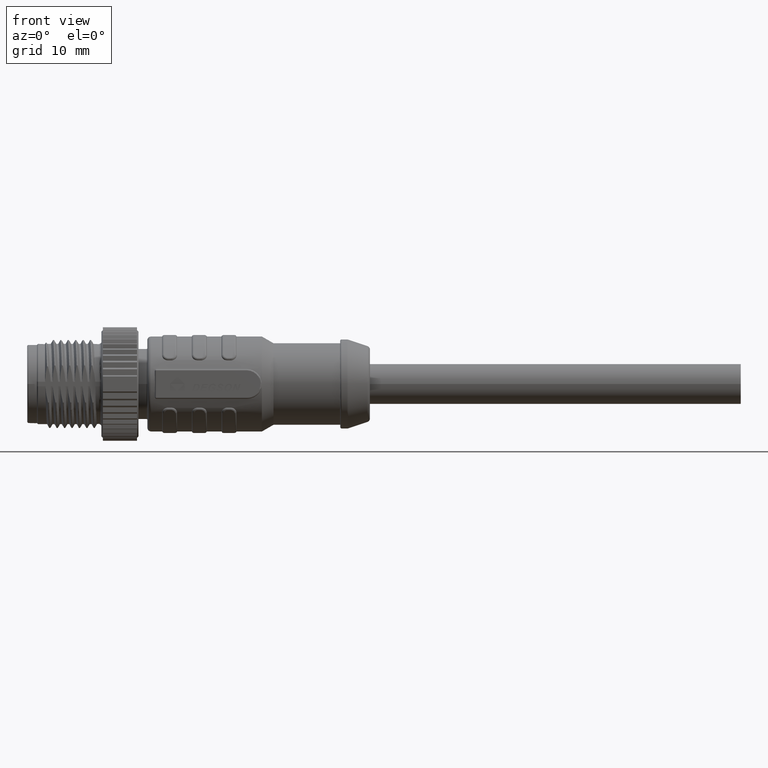
[diagram: clean part render]
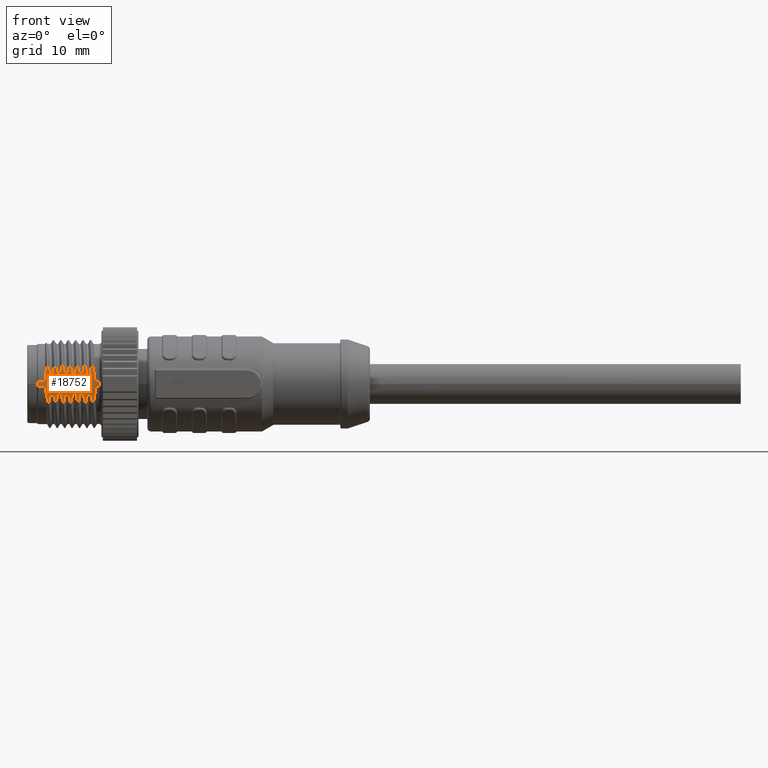
[diagram: same view with one face highlighted and labeled with its STEP entity id]
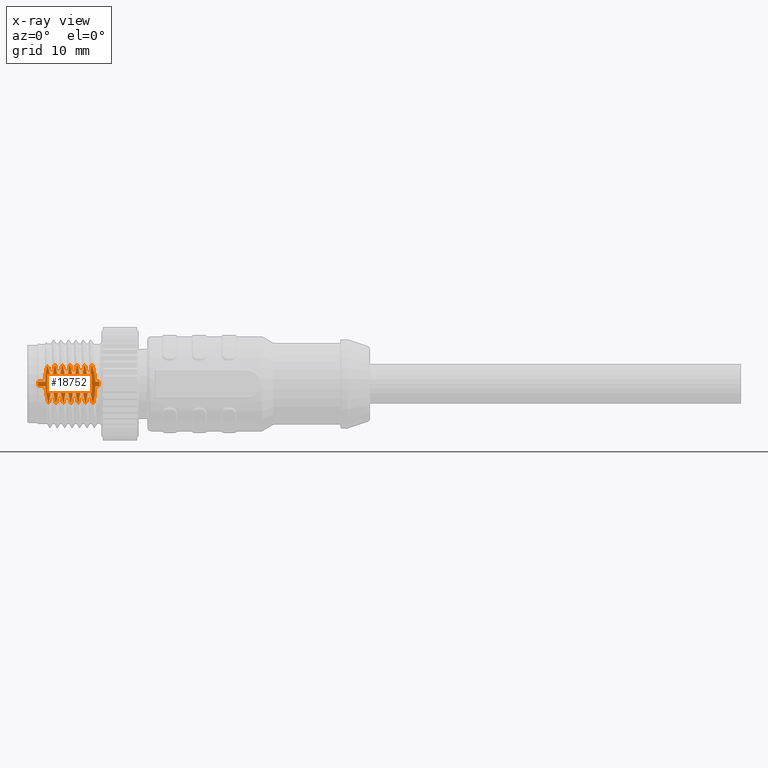
[diagram: x-ray of the same camera — body ghosted, the highlighted face saturated]
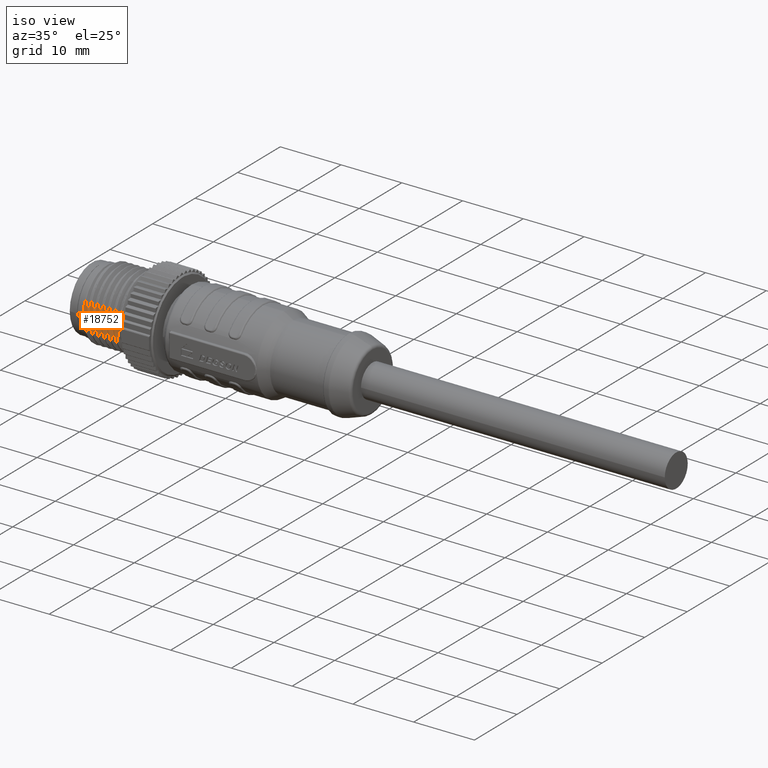
[diagram: same view with one face highlighted and labeled with its STEP entity id]
A machine part, front view. The second image highlights one B-rep face of the part: STEP entity #18752.
The next image is the same camera in x-ray: the body ghosted, the highlighted face saturated — about 0% of this face is hidden behind the body in this view.
A second angle (iso view) of the same face is appended — the face is thin or edge-on in the first view.
In plain terms, the highlighted planar face has unit normal (0, 1, 0).
Its self-contained STEP definition (entity closure, byte-faithful):
#3849=DIRECTION('',(-9.999999998954E-1,1.437775475043E-5,-1.555587373474E-6));
#3850=VECTOR('',#3849,5.361848417126E-1);
#3851=CARTESIAN_POINT('',(7.7E0,-5.399999996866E0,3.031043570919E-1));
#3852=LINE('',#3851,#3850);
#3879=CARTESIAN_POINT('',(4.758421549227E-1,-5.400004330202E0,
1.318686244811E0));
#3880=CARTESIAN_POINT('',(4.913543382881E-1,-5.400004330202E0,
1.431942857087E0));
#3881=CARTESIAN_POINT('',(5.264910600428E-1,-5.399997505345E0,
1.660938175478E0));
#3882=CARTESIAN_POINT('',(5.915410913869E-1,-5.400002235988E0,
2.010943916774E0));
#3883=CARTESIAN_POINT('',(6.435173238011E-1,-5.399996445797E0,
2.250433304931E0));
#3884=CARTESIAN_POINT('',(6.716387361948E-1,-5.399996445797E0,
2.371564042817E0));
#3886=DIRECTION('',(9.999999999676E-1,8.004545640167E-6,8.510400743817E-7));
#3887=VECTOR('',#3886,9.861847148798E-1);
#3888=CARTESIAN_POINT('',(-5.499998731411E-1,-5.400000181688E0,
-3.031043628394E-1));
#3889=LINE('',#3888,#3887);
#4541=CARTESIAN_POINT('',(4.361848417067E-1,-5.399992287728E0,
-3.031035235567E-1));
#4542=CARTESIAN_POINT('',(4.510722422625E-1,-5.399992287728E0,
-5.432032425523E-1));
#4543=CARTESIAN_POINT('',(4.994287043616E-1,-5.400001675959E0,
-1.025080632553E0));
#4544=CARTESIAN_POINT('',(6.235215837685E-1,-5.400005702552E0,
-1.747705924226E0));
#4545=CARTESIAN_POINT('',(7.401433756114E-1,-5.399985576739E0,
-2.240334188830E0));
#4546=CARTESIAN_POINT('',(8.062400712477E-1,-5.399985576739E0,
-2.488649446588E0));
#4555=DIRECTION('',(9.999999999903E-1,-5.681294500907E-7,-4.363862498854E-6));
#4556=VECTOR('',#4555,1.249825533555E-1);
#4557=CARTESIAN_POINT('',(8.062400712477E-1,-5.399985576739E0,
-2.488649446588E0));
#4558=LINE('',#4557,#4556);
#4578=CARTESIAN_POINT('',(9.312226246019E-1,-5.399985647746E0,
-2.488649991995E0));
#4579=CARTESIAN_POINT('',(9.853159903651E-1,-5.399985647746E0,
-2.240007772341E0));
#4580=CARTESIAN_POINT('',(1.076772205139E0,-5.400005666810E0,
-1.746831242520E0));
#4581=CARTESIAN_POINT('',(1.160682825947E0,-5.400001694545E0,
-1.024244117253E0));
#4582=CARTESIAN_POINT('',(1.180885693106E0,-5.399992268188E0,
-5.428160748020E-1));
#4583=CARTESIAN_POINT('',(1.181663345267E0,-5.399992268188E0,
-3.031043115776E-1));
#4607=DIRECTION('',(9.999999999952E-1,-7.678369311966E-8,3.098238038354E-6));
#4608=VECTOR('',#4607,2.545214963911E-1);
#4609=CARTESIAN_POINT('',(1.181663345267E0,-5.399992268188E0,
-3.031043115776E-1));
#4610=LINE('',#4609,#4608);
#4651=CARTESIAN_POINT('',(1.436184841657E0,-5.399992287731E0,
-3.031035230095E-1));
#4652=CARTESIAN_POINT('',(1.451072569460E0,-5.399992287731E0,
-5.432085197550E-1));
#4653=CARTESIAN_POINT('',(1.499430659419E0,-5.400001675957E0,
-1.025092596027E0));
#4654=CARTESIAN_POINT('',(1.623519391307E0,-5.400005702552E0,
-1.747693834707E0));
#4655=CARTESIAN_POINT('',(1.740141995772E0,-5.399985576739E0,
-2.240329004983E0));
#4656=CARTESIAN_POINT('',(1.806240071247E0,-5.399985576739E0,
-2.488649446588E0));
#4665=DIRECTION('',(9.999999999903E-1,-5.681284907233E-7,-4.363862076015E-6));
#4666=VECTOR('',#4665,1.249825533557E-1);
#4667=CARTESIAN_POINT('',(1.806240071247E0,-5.399985576739E0,
-2.488649446588E0));
#4668=LINE('',#4667,#4666);
#4688=CARTESIAN_POINT('',(1.931222624602E0,-5.399985647746E0,
-2.488649991995E0));
#4689=CARTESIAN_POINT('',(1.985316162070E0,-5.399985647746E0,
-2.240006983092E0));
#4690=CARTESIAN_POINT('',(2.076772444973E0,-5.400005666810E0,
-1.746829402940E0));
#4691=CARTESIAN_POINT('',(2.160682668051E0,-5.400001694545E0,
-1.024245520512E0));
#4692=CARTESIAN_POINT('',(2.180885691104E0,-5.399992268188E0,
-5.428166919759E-1));
#4693=CARTESIAN_POINT('',(2.181663345267E0,-5.399992268188E0,
-3.031043115776E-1));
#4717=DIRECTION('',(9.999999999952E-1,-7.678424796626E-8,3.098238108367E-6));
#4718=VECTOR('',#4717,2.545214963909E-1);
#4719=CARTESIAN_POINT('',(2.181663345267E0,-5.399992268188E0,
-3.031043115776E-1));
#4720=LINE('',#4719,#4718);
#4761=CARTESIAN_POINT('',(2.436184841656E0,-5.399992287731E0,
-3.031035230094E-1));
#4762=CARTESIAN_POINT('',(2.451072290899E0,-5.399992287731E0,
-5.432040272117E-1));
#4763=CARTESIAN_POINT('',(2.499428990967E0,-5.400001675957E0,
-1.025082413938E0));
#4764=CARTESIAN_POINT('',(2.623521306122E0,-5.400005702552E0,
-1.747704373342E0));
#4765=CARTESIAN_POINT('',(2.740143198405E0,-5.399985576739E0,
-2.240333523098E0));
#4766=CARTESIAN_POINT('',(2.806240071247E0,-5.399985576739E0,
-2.488649446588E0));
#4775=DIRECTION('',(9.999999999903E-1,-5.681295069419E-7,-4.363862498852E-6));
#4776=VECTOR('',#4775,1.249825533555E-1);
#4777=CARTESIAN_POINT('',(2.806240071247E0,-5.399985576739E0,
-2.488649446588E0));
#4778=LINE('',#4777,#4776);
#4798=CARTESIAN_POINT('',(2.931222624601E0,-5.399985647746E0,
-2.488649991995E0));
#4799=CARTESIAN_POINT('',(2.985316021382E0,-5.399985647746E0,
-2.240007629768E0));
#4800=CARTESIAN_POINT('',(3.076772247974E0,-5.400005666810E0,
-1.746830910425E0));
#4801=CARTESIAN_POINT('',(3.160682794794E0,-5.400001694545E0,
-1.024244400163E0));
#4802=CARTESIAN_POINT('',(3.180885692702E0,-5.399992268188E0,
-5.428161990473E-1));
#4803=CARTESIAN_POINT('',(3.181663345266E0,-5.399992268188E0,
-3.031043115777E-1));
#4827=DIRECTION('',(9.999999995624E-1,-2.958253887279E-5,-8.483503402669E-8));
#4828=VECTOR('',#4827,2.545084317712E-1);
#4829=CARTESIAN_POINT('',(3.181663345266E0,-5.399992268188E0,
-3.031043115777E-1));
#4830=LINE('',#4829,#4828);
#4876=CARTESIAN_POINT('',(3.436171776926E0,-5.399999797194E0,
-3.031043331689E-1));
#4877=CARTESIAN_POINT('',(3.450760734506E0,-5.399999797194E0,
-5.425362327964E-1));
#4878=CARTESIAN_POINT('',(3.499192089104E0,-5.399997053868E0,
-1.023496380586E0));
#4879=CARTESIAN_POINT('',(3.623118078726E0,-5.400010615671E0,
-1.746296900541E0));
#4880=CARTESIAN_POINT('',(3.740014142609E0,-5.399977194189E0,
-2.239726934057E0));
#4881=CARTESIAN_POINT('',(3.806275484389E0,-5.399977194189E0,
-2.488644533749E0));
#4883=DIRECTION('',(9.999999163569E-1,-3.714627774349E-4,-1.711770378165E-4));
#4884=VECTOR('',#4883,1.249997827542E-1);
#4885=CARTESIAN_POINT('',(3.806275484389E0,-5.399977194189E0,
-2.488644533749E0));
#4886=LINE('',#4885,#4884);
#4901=CARTESIAN_POINT('',(3.931275256688E0,-5.400023626955E0,
-2.488665930842E0));
#4902=CARTESIAN_POINT('',(3.985402507151E0,-5.400023626955E0,
-2.239353748617E0));
#4903=CARTESIAN_POINT('',(4.077094507122E0,-5.399982667366E0,
-1.745320431761E0));
#4904=CARTESIAN_POINT('',(4.160932559929E0,-5.400025223786E0,
-1.022731013885E0));
#4905=CARTESIAN_POINT('',(4.180910236874E0,-5.399952699589E0,
-5.421629693586E-1));
#4906=CARTESIAN_POINT('',(4.181814311390E0,-5.399952699589E0,
-3.031010049271E-1));
#4908=DIRECTION('',(9.999999878404E-1,-1.556317927055E-4,-9.899269086504E-6));
#4909=VECTOR('',#4908,2.543705333597E-1);
#4910=CARTESIAN_POINT('',(4.181814311390E0,-5.399952699589E0,
-3.031010049271E-1));
#4911=LINE('',#4910,#4909);
#4957=CARTESIAN_POINT('',(4.436184841656E0,-5.399992287731E0,
-3.031035230095E-1));
#4958=CARTESIAN_POINT('',(4.451072249305E0,-5.399992287731E0,
-5.432033564001E-1));
#4959=CARTESIAN_POINT('',(4.499428746806E0,-5.400001675957E0,
-1.025080889832E0));
#4960=CARTESIAN_POINT('',(4.623521530886E0,-5.400005702552E0,
-1.747705635585E0));
#4961=CARTESIAN_POINT('',(4.740143342683E0,-5.399985576739E0,
-2.240334065124E0));
#4962=CARTESIAN_POINT('',(4.806240071247E0,-5.399985576739E0,
-2.488649446588E0));
#4971=DIRECTION('',(9.999999999903E-1,-5.681283770246E-7,-4.363862033407E-6));
#4972=VECTOR('',#4971,1.249825533548E-1);
#4973=CARTESIAN_POINT('',(4.806240071247E0,-5.399985576739E0,
-2.488649446588E0));
#4974=LINE('',#4973,#4972);
#4994=CARTESIAN_POINT('',(4.931222624601E0,-5.399985647746E0,
-2.488649991995E0));
#4995=CARTESIAN_POINT('',(4.985311871132E0,-5.399985647746E0,
-2.240026706550E0));
#4996=CARTESIAN_POINT('',(5.076766409171E0,-5.400005666810E0,
-1.746875390620E0));
#4997=CARTESIAN_POINT('',(5.160686411219E0,-5.400001694545E0,
-1.024212795699E0));
#4998=CARTESIAN_POINT('',(5.180885737842E0,-5.399992268188E0,
-5.428022845591E-1));
#4999=CARTESIAN_POINT('',(5.181663345266E0,-5.399992268188E0,
-3.031043115777E-1));
#5023=DIRECTION('',(9.999999999952E-1,-7.678370707791E-8,3.098237976189E-6));
#5024=VECTOR('',#5023,2.545214963917E-1);
#5025=CARTESIAN_POINT('',(5.181663345266E0,-5.399992268188E0,
-3.031043115777E-1));
#5026=LINE('',#5025,#5024);
#5067=CARTESIAN_POINT('',(5.436184841656E0,-5.399992287731E0,
-3.031035230095E-1));
#5068=CARTESIAN_POINT('',(5.451072245830E0,-5.399992287731E0,
-5.432033003556E-1));
#5069=CARTESIAN_POINT('',(5.499428724833E0,-5.400001675957E0,
-1.025080763803E0));
#5070=CARTESIAN_POINT('',(5.623521571196E0,-5.400005702552E0,
-1.747705850298E0));
#5071=CARTESIAN_POINT('',(5.740143367124E0,-5.399985576739E0,
-2.240334156949E0));
#5072=CARTESIAN_POINT('',(5.806240071247E0,-5.399985576739E0,
-2.488649446588E0));
#5081=DIRECTION('',(9.999999999903E-1,-5.681295709040E-7,-4.363862534418E-6));
#5082=VECTOR('',#5081,1.249825533546E-1);
#5083=CARTESIAN_POINT('',(5.806240071247E0,-5.399985576739E0,
-2.488649446588E0));
#5084=LINE('',#5083,#5082);
#5104=CARTESIAN_POINT('',(5.931222624600E0,-5.399985647746E0,
-2.488649991995E0));
#5105=CARTESIAN_POINT('',(5.985308631293E0,-5.399985647746E0,
-2.240041598590E0));
#5106=CARTESIAN_POINT('',(6.076761866526E0,-5.400005666810E0,
-1.746910110960E0));
#5107=CARTESIAN_POINT('',(6.160689276205E0,-5.400001694545E0,
-1.024187583744E0));
#5108=CARTESIAN_POINT('',(6.180885773841E0,-5.399992268188E0,
-5.427911881383E-1));
#5109=CARTESIAN_POINT('',(6.181663345267E0,-5.399992268188E0,
-3.031043115776E-1));
#5133=DIRECTION('',(9.999999997348E-1,-2.302064609998E-5,6.218319285253E-7));
#5134=VECTOR('',#5133,2.545113371248E-1);
#5135=CARTESIAN_POINT('',(6.181663345267E0,-5.399992268188E0,
-3.031043115776E-1));
#5136=LINE('',#5135,#5134);
#5170=CARTESIAN_POINT('',(6.436174682324E0,-5.399998127204E0,
-3.031041533143E-1));
#5171=CARTESIAN_POINT('',(6.451022602603E0,-5.399998127204E0,
-5.430121990020E-1));
#5172=CARTESIAN_POINT('',(6.499327684022E0,-5.400000281190E0,
-1.024634105251E0));
#5173=CARTESIAN_POINT('',(6.623433815127E0,-5.400001825031E0,
-1.747200870850E0));
#5174=CARTESIAN_POINT('',(6.740097759651E0,-5.399995554136E0,
-2.240123914630E0));
#5175=CARTESIAN_POINT('',(6.806235446915E0,-5.399995554136E0,
-2.488654184696E0));
#5177=DIRECTION('',(9.999999999974E-1,-5.543265565438E-7,-2.221890536559E-6));
#5178=VECTOR('',#5177,1.249916052548E-1);
#5179=CARTESIAN_POINT('',(6.806235446915E0,-5.399995554136E0,
-2.488654184696E0));
#5180=LINE('',#5179,#5178);
#5190=CARTESIAN_POINT('',(6.931227052169E0,-5.399995623422E0,
-2.488654462414E0));
#5191=CARTESIAN_POINT('',(6.985351456132E0,-5.399995623422E0,
-2.239795131548E0));
#5192=CARTESIAN_POINT('',(7.076834908719E0,-5.400001792766E0,
-1.746321255592E0));
#5193=CARTESIAN_POINT('',(7.160759299804E0,-5.400000290187E0,
-1.023788061331E0));
#5194=CARTESIAN_POINT('',(7.180924219094E0,-5.399998127719E0,
-5.426205693641E-1));
#5195=CARTESIAN_POINT('',(7.181673481334E0,-5.399998127719E0,
-3.031043448355E-1));
#5225=DIRECTION('',(9.999999999935E-1,-3.606118645557E-6,-2.364545437958E-8));
#5226=VECTOR('',#5225,5.183265186696E-1);
#5227=CARTESIAN_POINT('',(7.181673481334E0,-5.399998127719E0,
-3.031043448355E-1));
#5228=LINE('',#5227,#5226);
#5254=DIRECTION('',(0.E0,6.842186730335E-13,1.E0));
#5255=VECTOR('',#5254,6.062087141834E-1);
#5256=CARTESIAN_POINT('',(7.7E0,-5.399999996866E0,-3.031043570916E-1));
#5257=LINE('',#5256,#5255);
#5445=CARTESIAN_POINT('',(7.163815158344E0,-5.399992287731E0,
3.031035230095E-1));
#5446=CARTESIAN_POINT('',(7.148925360143E0,-5.399992287731E0,
5.432419105243E-1));
#5447=CARTESIAN_POINT('',(7.100556733644E0,-5.400001675957E0,1.025168098469E0));
#5448=CARTESIAN_POINT('',(6.976497755576E0,-5.400005702552E0,1.747600788239E0));
#5449=CARTESIAN_POINT('',(6.859868612059E0,-5.399985576739E0,2.240289152968E0));
#5450=CARTESIAN_POINT('',(6.793759928752E0,-5.399985576739E0,2.488649446588E0));
#5474=DIRECTION('',(-9.999999999903E-1,-5.681296348602E-7,4.363862630342E-6));
#5475=VECTOR('',#5474,1.249825533549E-1);
#5476=CARTESIAN_POINT('',(6.793759928752E0,-5.399985576739E0,2.488649446588E0));
#5477=LINE('',#5476,#5475);
#5497=CARTESIAN_POINT('',(6.668777375398E0,-5.399985647746E0,2.488649991995E0));
#5498=CARTESIAN_POINT('',(6.614689026518E0,-5.399985647746E0,2.240030832635E0));
#5499=CARTESIAN_POINT('',(6.523234857077E0,-5.400005666810E0,1.746885013211E0));
#5500=CARTESIAN_POINT('',(6.439312831039E0,-5.400001694545E0,1.024206217262E0));
#5501=CARTESIAN_POINT('',(6.419114252756E0,-5.399992268188E0,
5.427993865657E-1));
#5502=CARTESIAN_POINT('',(6.418336654733E0,-5.399992268188E0,
3.031043115776E-1));
#5511=DIRECTION('',(-9.999999999952E-1,-7.678422353905E-8,-3.098238103786E-6));
#5512=VECTOR('',#5511,2.545214963909E-1);
#5513=CARTESIAN_POINT('',(6.418336654733E0,-5.399992268188E0,
3.031043115776E-1));
#5514=LINE('',#5513,#5512);
#5555=CARTESIAN_POINT('',(6.163815158343E0,-5.399992287731E0,
3.031035230094E-1));
#5556=CARTESIAN_POINT('',(6.148927074650E0,-5.399992287731E0,
5.432142594464E-1));
#5557=CARTESIAN_POINT('',(6.100567162099E0,-5.400001675957E0,1.025105564960E0));
#5558=CARTESIAN_POINT('',(5.976483713721E0,-5.400005702552E0,1.747677043050E0));
#5559=CARTESIAN_POINT('',(5.859859918089E0,-5.399985576739E0,2.240321814893E0));
#5560=CARTESIAN_POINT('',(5.793759928750E0,-5.399985576739E0,2.488649446588E0));
#5584=DIRECTION('',(-9.999999999903E-1,-5.681292440093E-7,4.363862388740E-6));
#5585=VECTOR('',#5584,1.249825533544E-1);
#5586=CARTESIAN_POINT('',(5.793759928750E0,-5.399985576739E0,2.488649446588E0));
#5587=LINE('',#5586,#5585);
#5607=CARTESIAN_POINT('',(5.668777375397E0,-5.399985647746E0,2.488649991995E0));
#5608=CARTESIAN_POINT('',(5.614683880037E0,-5.399985647746E0,2.240007176645E0));
#5609=CARTESIAN_POINT('',(5.523227614147E0,-5.400005666810E0,1.746829854193E0));
#5610=CARTESIAN_POINT('',(5.439317294685E0,-5.400001694545E0,1.024245193578E0));
#5611=CARTESIAN_POINT('',(5.419114308430E0,-5.399992268188E0,
5.428165480789E-1));
#5612=CARTESIAN_POINT('',(5.418336654733E0,-5.399992268188E0,
3.031043115776E-1));
#5621=DIRECTION('',(-9.999999999952E-1,-7.678391645413E-8,-3.098238020689E-6));
#5622=VECTOR('',#5621,2.545214963911E-1);
#5623=CARTESIAN_POINT('',(5.418336654733E0,-5.399992268188E0,
3.031043115776E-1));
#5624=LINE('',#5623,#5622);
#5665=CARTESIAN_POINT('',(5.163815158343E0,-5.399992287731E0,
3.031035230095E-1));
#5666=CARTESIAN_POINT('',(5.148926757583E0,-5.399992287731E0,
5.432193730161E-1));
#5667=CARTESIAN_POINT('',(5.100565225530E0,-5.400001675957E0,1.025117123025E0));
#5668=CARTESIAN_POINT('',(4.976486415671E0,-5.400005702552E0,1.747662408850E0));
#5669=CARTESIAN_POINT('',(4.859861586239E0,-5.399985576739E0,2.240315547908E0));
#5670=CARTESIAN_POINT('',(4.793759928752E0,-5.399985576739E0,2.488649446588E0));
#5694=DIRECTION('',(-9.999999999903E-1,-5.681300257136E-7,4.363862765367E-6));
#5695=VECTOR('',#5694,1.249825533548E-1);
#5696=CARTESIAN_POINT('',(4.793759928752E0,-5.399985576739E0,2.488649446588E0));
#5697=LINE('',#5696,#5695);
#5717=CARTESIAN_POINT('',(4.668777375398E0,-5.399985647746E0,2.488649991995E0));
#5718=CARTESIAN_POINT('',(4.614683836363E0,-5.399985647746E0,2.240006975890E0));
#5719=CARTESIAN_POINT('',(4.523227555124E0,-5.400005666810E0,1.746829387054E0));
#5720=CARTESIAN_POINT('',(4.439317344869E0,-5.400001694545E0,1.024245662398E0));
#5721=CARTESIAN_POINT('',(4.419114309096E0,-5.399992268188E0,
5.428167535779E-1));
#5722=CARTESIAN_POINT('',(4.418336654733E0,-5.399992268188E0,
3.031043115776E-1));
#5731=DIRECTION('',(-9.999999999952E-1,-7.678369660926E-8,-3.098237896152E-6));
#5732=VECTOR('',#5731,2.545214963911E-1);
#5733=CARTESIAN_POINT('',(4.418336654733E0,-5.399992268188E0,
3.031043115776E-1));
#5734=LINE('',#5733,#5732);
#5775=CARTESIAN_POINT('',(4.163815158343E0,-5.399992287731E0,
3.031035230094E-1));
#5776=CARTESIAN_POINT('',(4.148926489754E0,-5.399992287731E0,
5.432236924882E-1));
#5777=CARTESIAN_POINT('',(4.100563589054E0,-5.400001675957E0,1.025126885755E0));
#5778=CARTESIAN_POINT('',(3.976488705568E0,-5.400005702552E0,1.747650009645E0));
#5779=CARTESIAN_POINT('',(3.859862999604E0,-5.399985576739E0,2.240310238114E0));
#5780=CARTESIAN_POINT('',(3.793759928752E0,-5.399985576739E0,2.488649446588E0));
#5804=DIRECTION('',(-9.999999999903E-1,-5.681298480498E-7,4.363862736915E-6));
#5805=VECTOR('',#5804,1.249825533556E-1);
#5806=CARTESIAN_POINT('',(3.793759928752E0,-5.399985576739E0,2.488649446588E0));
#5807=LINE('',#5806,#5805);
#5827=CARTESIAN_POINT('',(3.668777375398E0,-5.399985647746E0,2.488649991995E0));
#5828=CARTESIAN_POINT('',(3.614694652317E0,-5.399985647746E0,2.240056691835E0));
#5829=CARTESIAN_POINT('',(3.523242739803E0,-5.400005666810E0,1.746945297348E0));
#5830=CARTESIAN_POINT('',(3.439307797245E0,-5.400001694545E0,1.024161793827E0));
#5831=CARTESIAN_POINT('',(3.419114189341E0,-5.399992268188E0,
5.427798388695E-1));
#5832=CARTESIAN_POINT('',(3.418336654733E0,-5.399992268188E0,
3.031043115776E-1));
#5841=DIRECTION('',(-9.999999999952E-1,-7.678369660926E-8,-3.098238032029E-6));
#5842=VECTOR('',#5841,2.545214963911E-1);
#5843=CARTESIAN_POINT('',(3.418336654733E0,-5.399992268188E0,
3.031043115776E-1));
#5844=LINE('',#5843,#5842);
#5885=CARTESIAN_POINT('',(3.163815158343E0,-5.399992287731E0,
3.031035230095E-1));
#5886=CARTESIAN_POINT('',(3.148928120267E0,-5.399992287731E0,
5.431973960424E-1));
#5887=CARTESIAN_POINT('',(3.100573492393E0,-5.400001675957E0,1.025067404433E0));
#5888=CARTESIAN_POINT('',(2.976475537356E0,-5.400005702552E0,1.747721587359E0));
#5889=CARTESIAN_POINT('',(2.859854838300E0,-5.399985576739E0,2.240340898893E0));
#5890=CARTESIAN_POINT('',(2.793759928751E0,-5.399985576739E0,2.488649446588E0));
#5914=DIRECTION('',(-9.999999999903E-1,-5.681289242150E-7,4.363862274996E-6));
#5915=VECTOR('',#5914,1.249825533556E-1);
#5916=CARTESIAN_POINT('',(2.793759928751E0,-5.399985576739E0,2.488649446588E0));
#5917=LINE('',#5916,#5915);
#5944=CARTESIAN_POINT('',(2.668777375397E0,-5.399985647746E0,2.488649991995E0));
#5945=CARTESIAN_POINT('',(2.614684025703E0,-5.399985647746E0,2.240007846201E0));
#5946=CARTESIAN_POINT('',(2.523227817126E0,-5.400005666810E0,1.746831414599E0));
#5947=CARTESIAN_POINT('',(2.439317158346E0,-5.400001694545E0,1.024243975474E0));
#5948=CARTESIAN_POINT('',(2.419114306692E0,-5.399992268188E0,
5.428160125105E-1));
#5949=CARTESIAN_POINT('',(2.418336654733E0,-5.399992268188E0,
3.031043115776E-1));
#5951=DIRECTION('',(-9.999999999952E-1,-7.678424447666E-8,-3.098237970091E-6));
#5952=VECTOR('',#5951,2.545214963909E-1);
#5953=CARTESIAN_POINT('',(2.418336654733E0,-5.399992268188E0,
3.031043115776E-1));
#5954=LINE('',#5953,#5952);
#5995=CARTESIAN_POINT('',(2.163815158344E0,-5.399992287731E0,
3.031035230095E-1));
#5996=CARTESIAN_POINT('',(2.148927993255E0,-5.399992287731E0,
5.431994444543E-1));
#5997=CARTESIAN_POINT('',(2.100572711174E0,-5.400001675957E0,1.025072029466E0));
#5998=CARTESIAN_POINT('',(1.976476702033E0,-5.400005702552E0,1.747715309367E0));
#5999=CARTESIAN_POINT('',(1.859855553688E0,-5.399985576739E0,2.240338211292E0));
#6000=CARTESIAN_POINT('',(1.793759928752E0,-5.399985576739E0,2.488649446588E0));
#6024=DIRECTION('',(-9.999999999903E-1,-5.681297627728E-7,4.363862658745E-6));
#6025=VECTOR('',#6024,1.249825533556E-1);
#6026=CARTESIAN_POINT('',(1.793759928752E0,-5.399985576739E0,2.488649446588E0));
#6027=LINE('',#6026,#6025);
#6047=CARTESIAN_POINT('',(1.668777375398E0,-5.399985647746E0,2.488649991995E0));
#6048=CARTESIAN_POINT('',(1.614697134427E0,-5.399985647746E0,2.240068100946E0));
#6049=CARTESIAN_POINT('',(1.523246256427E0,-5.400005666810E0,1.746971909655E0));
#6050=CARTESIAN_POINT('',(1.439305767957E0,-5.400001694545E0,1.024144343548E0));
#6051=CARTESIAN_POINT('',(1.419114164386E0,-5.399992268188E0,
5.427721463906E-1));
#6052=CARTESIAN_POINT('',(1.418336654734E0,-5.399992268188E0,
3.031043115777E-1));
#6083=DIRECTION('',(-9.999999999770E-1,-6.697675903678E-6,1.063779218940E-6));
#6084=VECTOR('',#6083,2.544906629279E-1);
#6085=CARTESIAN_POINT('',(1.418336654734E0,-5.399992268188E0,
3.031043115777E-1));
#6086=LINE('',#6085,#6084);
#6101=DIRECTION('',(-9.999999999932E-1,-3.694868514917E-6,-1.641046294269E-8));
#6102=VECTOR('',#6101,9.683116304696E-1);
#6103=CARTESIAN_POINT('',(4.183117011075E-1,-5.399996391668E0,
3.031043640094E-1));
#6104=LINE('',#6103,#6102);
#6105=CARTESIAN_POINT('',(1.163845991812E0,-5.399993972684E0,
3.031045822995E-1));
#6106=CARTESIAN_POINT('',(1.156824678803E0,-5.399993972684E0,
4.169063279748E-1));
#6107=CARTESIAN_POINT('',(1.138615304564E0,-5.400003510377E0,
6.438529349403E-1));
#6108=CARTESIAN_POINT('',(1.099766659784E0,-5.399996754654E0,
9.826166801678E-1));
#6109=CARTESIAN_POINT('',(1.066322448367E0,-5.400005232223E0,1.206876101869E0));
#6110=CARTESIAN_POINT('',(1.047912171951E0,-5.400005232223E0,1.318684738221E0));
#6116=CARTESIAN_POINT('',(1.047912171951E0,-5.400005232223E0,1.318684738221E0));
#6117=CARTESIAN_POINT('',(1.025719793196E0,-5.400005232223E0,1.433871358680E0));
#6118=CARTESIAN_POINT('',(9.774018805108E-1,-5.399996899010E0,
1.665411009485E0));
#6119=CARTESIAN_POINT('',(8.936677273508E-1,-5.400003005129E0,
2.015414603915E0));
#6120=CARTESIAN_POINT('',(8.301994332241E-1,-5.399995055359E0,
2.252334633392E0));
#6121=CARTESIAN_POINT('',(7.966359351429E-1,-5.399995055359E0,
2.371563270712E0));
#6149=DIRECTION('',(-9.999999999191E-1,-1.112375405584E-5,6.176973988498E-6));
#6150=VECTOR('',#6149,1.249971989583E-1);
#6151=CARTESIAN_POINT('',(7.966359351429E-1,-5.399995055359E0,
2.371563270712E0));
#6152=LINE('',#6151,#6150);
#6175=CARTESIAN_POINT('',(4.758421549227E-1,-5.400004330202E0,
1.318686244811E0));
#6176=CARTESIAN_POINT('',(4.635761248955E-1,-5.400004330202E0,
1.206345574355E0));
#6177=CARTESIAN_POINT('',(4.427947308449E-1,-5.399997498128E0,
9.813440215216E-1));
#6178=CARTESIAN_POINT('',(4.234863612253E-1,-5.400002261249E0,
6.425452267947E-1));
#6179=CARTESIAN_POINT('',(4.186628170011E-1,-5.399996391668E0,
4.163374911785E-1));
#6180=CARTESIAN_POINT('',(4.183117011075E-1,-5.399996391668E0,
3.031043640094E-1));
#6186=DIRECTION('',(9.273105912988E-8,-3.501042225941E-7,-9.999999999999E-1));
#6187=VECTOR('',#6186,6.062087109584E-1);
#6188=CARTESIAN_POINT('',(-5.499999293555E-1,-5.399999969452E0,
3.031043481190E-1));
#6189=LINE('',#6188,#6187);
#11429=CARTESIAN_POINT('',(7.7E0,-5.4E0,3.031043549671E-1));
#11431=VERTEX_POINT('',#11429);
#11433=CARTESIAN_POINT('',(7.163815158344E0,-5.399992287731E0,
3.031035230095E-1));
#11434=VERTEX_POINT('',#11433);
#11443=CARTESIAN_POINT('',(-5.499998731411E-1,-5.400000181688E0,
-3.031043628394E-1));
#11444=CARTESIAN_POINT('',(4.361848417067E-1,-5.399992287728E0,
-3.031035235567E-1));
#11445=VERTEX_POINT('',#11443);
#11446=VERTEX_POINT('',#11444);
#11447=CARTESIAN_POINT('',(-5.499999293555E-1,-5.399999969452E0,
3.031043481190E-1));
#11448=VERTEX_POINT('',#11447);
#11449=CARTESIAN_POINT('',(4.183117011075E-1,-5.399996391668E0,
3.031043640094E-1));
#11450=VERTEX_POINT('',#11449);
#11451=VERTEX_POINT('',#6175);
#11452=VERTEX_POINT('',#3884);
#11453=CARTESIAN_POINT('',(7.966359351429E-1,-5.399995055359E0,
2.371563270712E0));
#11454=VERTEX_POINT('',#11453);
#11455=VERTEX_POINT('',#6116);
#11456=VERTEX_POINT('',#6105);
#11457=CARTESIAN_POINT('',(1.418336654734E0,-5.399992268188E0,
3.031043115777E-1));
#11458=VERTEX_POINT('',#11457);
#11459=VERTEX_POINT('',#6047);
#11460=CARTESIAN_POINT('',(1.793759928752E0,-5.399985576739E0,
2.488649446588E0));
#11461=VERTEX_POINT('',#11460);
#11462=VERTEX_POINT('',#5995);
#11463=CARTESIAN_POINT('',(2.418336654733E0,-5.399992268188E0,
3.031043115776E-1));
#11464=VERTEX_POINT('',#11463);
#11465=VERTEX_POINT('',#5944);
#11466=CARTESIAN_POINT('',(2.793759928751E0,-5.399985576739E0,
2.488649446588E0));
#11467=VERTEX_POINT('',#11466);
#11468=VERTEX_POINT('',#5885);
#11469=CARTESIAN_POINT('',(3.418336654733E0,-5.399992268188E0,
3.031043115776E-1));
#11470=VERTEX_POINT('',#11469);
#11471=VERTEX_POINT('',#5827);
#11472=CARTESIAN_POINT('',(3.793759928752E0,-5.399985576739E0,
2.488649446588E0));
#11473=VERTEX_POINT('',#11472);
#11474=VERTEX_POINT('',#5775);
#11475=CARTESIAN_POINT('',(4.418336654733E0,-5.399992268188E0,
3.031043115776E-1));
#11476=VERTEX_POINT('',#11475);
#11477=VERTEX_POINT('',#5717);
#11478=CARTESIAN_POINT('',(4.793759928752E0,-5.399985576739E0,
2.488649446588E0));
#11479=VERTEX_POINT('',#11478);
#11480=VERTEX_POINT('',#5665);
#11481=CARTESIAN_POINT('',(5.418336654733E0,-5.399992268188E0,
3.031043115776E-1));
#11482=VERTEX_POINT('',#11481);
#11483=VERTEX_POINT('',#5607);
#11484=CARTESIAN_POINT('',(5.793759928750E0,-5.399985576739E0,
2.488649446588E0));
#11485=VERTEX_POINT('',#11484);
#11486=VERTEX_POINT('',#5555);
#11487=CARTESIAN_POINT('',(6.418336654733E0,-5.399992268188E0,
3.031043115776E-1));
#11488=VERTEX_POINT('',#11487);
#11489=VERTEX_POINT('',#5497);
#11490=CARTESIAN_POINT('',(6.793759928752E0,-5.399985576739E0,
2.488649446588E0));
#11491=VERTEX_POINT('',#11490);
#11492=CARTESIAN_POINT('',(7.7E0,-5.399999996866E0,-3.031043570916E-1));
#11493=VERTEX_POINT('',#11492);
#11494=CARTESIAN_POINT('',(7.181673481334E0,-5.399998127719E0,
-3.031043448355E-1));
#11495=VERTEX_POINT('',#11494);
#11496=VERTEX_POINT('',#5190);
#11497=CARTESIAN_POINT('',(6.806235446915E0,-5.399995554136E0,
-2.488654184696E0));
#11498=VERTEX_POINT('',#11497);
#11499=VERTEX_POINT('',#5170);
#11500=CARTESIAN_POINT('',(6.181663345267E0,-5.399992268188E0,
-3.031043115776E-1));
#11501=VERTEX_POINT('',#11500);
#11502=VERTEX_POINT('',#5104);
#11503=CARTESIAN_POINT('',(5.806240071247E0,-5.399985576739E0,
-2.488649446588E0));
#11504=VERTEX_POINT('',#11503);
#11505=VERTEX_POINT('',#5067);
#11506=CARTESIAN_POINT('',(5.181663345266E0,-5.399992268188E0,
-3.031043115777E-1));
#11507=VERTEX_POINT('',#11506);
#11508=VERTEX_POINT('',#4994);
#11509=CARTESIAN_POINT('',(4.806240071247E0,-5.399985576739E0,
-2.488649446588E0));
#11510=VERTEX_POINT('',#11509);
#11511=VERTEX_POINT('',#4957);
#11512=CARTESIAN_POINT('',(4.181814311390E0,-5.399952699589E0,
-3.031010049271E-1));
#11513=VERTEX_POINT('',#11512);
#11514=VERTEX_POINT('',#4901);
#11515=CARTESIAN_POINT('',(3.806275484389E0,-5.399977194189E0,
-2.488644533749E0));
#11516=VERTEX_POINT('',#11515);
#11517=VERTEX_POINT('',#4876);
#11518=CARTESIAN_POINT('',(3.181663345266E0,-5.399992268188E0,
-3.031043115777E-1));
#11519=VERTEX_POINT('',#11518);
#11520=VERTEX_POINT('',#4798);
#11521=CARTESIAN_POINT('',(2.806240071247E0,-5.399985576739E0,
-2.488649446588E0));
#11522=VERTEX_POINT('',#11521);
#11523=VERTEX_POINT('',#4761);
#11524=CARTESIAN_POINT('',(2.181663345267E0,-5.399992268188E0,
-3.031043115776E-1));
#11525=VERTEX_POINT('',#11524);
#11526=VERTEX_POINT('',#4688);
#11527=CARTESIAN_POINT('',(1.806240071247E0,-5.399985576739E0,
-2.488649446588E0));
#11528=VERTEX_POINT('',#11527);
#11529=VERTEX_POINT('',#4651);
#11530=CARTESIAN_POINT('',(1.181663345267E0,-5.399992268188E0,
-3.031043115776E-1));
#11531=VERTEX_POINT('',#11530);
#11532=VERTEX_POINT('',#4578);
#11533=CARTESIAN_POINT('',(8.062400712477E-1,-5.399985576739E0,
-2.488649446588E0));
#11534=VERTEX_POINT('',#11533);
#18622=CARTESIAN_POINT('',(-1.E0,-5.4E0,5.4E0));
#18623=DIRECTION('',(0.E0,1.E0,0.E0));
#18624=DIRECTION('',(0.E0,0.E0,-1.E0));
#18625=AXIS2_PLACEMENT_3D('',#18622,#18623,#18624);
#18626=PLANE('',#18625);
#18628=ORIENTED_EDGE('',*,*,#18627,.F.);
#18630=ORIENTED_EDGE('',*,*,#18629,.F.);
#18632=ORIENTED_EDGE('',*,*,#18631,.F.);
#18634=ORIENTED_EDGE('',*,*,#18633,.F.);
#18636=ORIENTED_EDGE('',*,*,#18635,.T.);
#18638=ORIENTED_EDGE('',*,*,#18637,.F.);
#18640=ORIENTED_EDGE('',*,*,#18639,.F.);
#18642=ORIENTED_EDGE('',*,*,#18641,.F.);
#18644=ORIENTED_EDGE('',*,*,#18643,.F.);
#18646=ORIENTED_EDGE('',*,*,#18645,.F.);
#18648=ORIENTED_EDGE('',*,*,#18647,.F.);
#18650=ORIENTED_EDGE('',*,*,#18649,.F.);
#18652=ORIENTED_EDGE('',*,*,#18651,.F.);
#18654=ORIENTED_EDGE('',*,*,#18653,.F.);
#18656=ORIENTED_EDGE('',*,*,#18655,.F.);
#18658=ORIENTED_EDGE('',*,*,#18657,.F.);
#18660=ORIENTED_EDGE('',*,*,#18659,.F.);
#18662=ORIENTED_EDGE('',*,*,#18661,.F.);
#18664=ORIENTED_EDGE('',*,*,#18663,.F.);
#18666=ORIENTED_EDGE('',*,*,#18665,.F.);
#18668=ORIENTED_EDGE('',*,*,#18667,.F.);
#18670=ORIENTED_EDGE('',*,*,#18669,.F.);
#18672=ORIENTED_EDGE('',*,*,#18671,.F.);
#18674=ORIENTED_EDGE('',*,*,#18673,.F.);
#18676=ORIENTED_EDGE('',*,*,#18675,.F.);
#18678=ORIENTED_EDGE('',*,*,#18677,.F.);
#18680=ORIENTED_EDGE('',*,*,#18679,.F.);
#18682=ORIENTED_EDGE('',*,*,#18681,.F.);
#18684=ORIENTED_EDGE('',*,*,#18683,.F.);
#18686=ORIENTED_EDGE('',*,*,#18685,.F.);
#18688=ORIENTED_EDGE('',*,*,#18687,.F.);
#18690=ORIENTED_EDGE('',*,*,#18689,.F.);
#18691=ORIENTED_EDGE('',*,*,#18605,.F.);
#18693=ORIENTED_EDGE('',*,*,#18692,.F.);
#18695=ORIENTED_EDGE('',*,*,#18694,.F.);
#18697=ORIENTED_EDGE('',*,*,#18696,.F.);
#18699=ORIENTED_EDGE('',*,*,#18698,.F.);
#18701=ORIENTED_EDGE('',*,*,#18700,.F.);
#18703=ORIENTED_EDGE('',*,*,#18702,.F.);
#18705=ORIENTED_EDGE('',*,*,#18704,.F.);
#18707=ORIENTED_EDGE('',*,*,#18706,.F.);
#18709=ORIENTED_EDGE('',*,*,#18708,.F.);
#18711=ORIENTED_EDGE('',*,*,#18710,.F.);
#18713=ORIENTED_EDGE('',*,*,#18712,.F.);
#18715=ORIENTED_EDGE('',*,*,#18714,.F.);
#18717=ORIENTED_EDGE('',*,*,#18716,.F.);
#18719=ORIENTED_EDGE('',*,*,#18718,.F.);
#18721=ORIENTED_EDGE('',*,*,#18720,.F.);
#18723=ORIENTED_EDGE('',*,*,#18722,.F.);
#18725=ORIENTED_EDGE('',*,*,#18724,.F.);
#18727=ORIENTED_EDGE('',*,*,#18726,.F.);
#18729=ORIENTED_EDGE('',*,*,#18728,.F.);
#18731=ORIENTED_EDGE('',*,*,#18730,.F.);
#18733=ORIENTED_EDGE('',*,*,#18732,.F.);
#18735=ORIENTED_EDGE('',*,*,#18734,.F.);
#18737=ORIENTED_EDGE('',*,*,#18736,.F.);
#18739=ORIENTED_EDGE('',*,*,#18738,.F.);
#18741=ORIENTED_EDGE('',*,*,#18740,.F.);
#18743=ORIENTED_EDGE('',*,*,#18742,.F.);
#18745=ORIENTED_EDGE('',*,*,#18744,.F.);
#18747=ORIENTED_EDGE('',*,*,#18746,.F.);
#18749=ORIENTED_EDGE('',*,*,#18748,.F.);
#18750=EDGE_LOOP('',(#18628,#18630,#18632,#18634,#18636,#18638,#18640,#18642,
#18644,#18646,#18648,#18650,#18652,#18654,#18656,#18658,#18660,#18662,#18664,
#18666,#18668,#18670,#18672,#18674,#18676,#18678,#18680,#18682,#18684,#18686,
#18688,#18690,#18691,#18693,#18695,#18697,#18699,#18701,#18703,#18705,#18707,
#18709,#18711,#18713,#18715,#18717,#18719,#18721,#18723,#18725,#18727,#18729,
#18731,#18733,#18735,#18737,#18739,#18741,#18743,#18745,#18747,#18749));
#18751=FACE_OUTER_BOUND('',#18750,.F.);
#18752=ADVANCED_FACE('',(#18751),#18626,.F.);
#3885=B_SPLINE_CURVE_WITH_KNOTS('',3,(#3879,#3880,#3881,#3882,#3883,#3884),
.UNSPECIFIED.,.F.,.F.,(4,1,1,4),(0.E0,3.333333333333E-1,6.666666666667E-1,1.E0),
.UNSPECIFIED.);
#4547=B_SPLINE_CURVE_WITH_KNOTS('',3,(#4541,#4542,#4543,#4544,#4545,#4546),
.UNSPECIFIED.,.F.,.F.,(4,1,1,4),(0.E0,3.333333333333E-1,6.666666666667E-1,1.E0),
.UNSPECIFIED.);
#4584=B_SPLINE_CURVE_WITH_KNOTS('',3,(#4578,#4579,#4580,#4581,#4582,#4583),
.UNSPECIFIED.,.F.,.F.,(4,1,1,4),(0.E0,3.333333333333E-1,6.666666666667E-1,1.E0),
.UNSPECIFIED.);
#4657=B_SPLINE_CURVE_WITH_KNOTS('',3,(#4651,#4652,#4653,#4654,#4655,#4656),
.UNSPECIFIED.,.F.,.F.,(4,1,1,4),(0.E0,3.333333333333E-1,6.666666666667E-1,1.E0),
.UNSPECIFIED.);
#4694=B_SPLINE_CURVE_WITH_KNOTS('',3,(#4688,#4689,#4690,#4691,#4692,#4693),
.UNSPECIFIED.,.F.,.F.,(4,1,1,4),(0.E0,3.333333333333E-1,6.666666666667E-1,1.E0),
.UNSPECIFIED.);
#4767=B_SPLINE_CURVE_WITH_KNOTS('',3,(#4761,#4762,#4763,#4764,#4765,#4766),
.UNSPECIFIED.,.F.,.F.,(4,1,1,4),(0.E0,3.333333333333E-1,6.666666666667E-1,1.E0),
.UNSPECIFIED.);
#4804=B_SPLINE_CURVE_WITH_KNOTS('',3,(#4798,#4799,#4800,#4801,#4802,#4803),
.UNSPECIFIED.,.F.,.F.,(4,1,1,4),(0.E0,3.333333333333E-1,6.666666666667E-1,1.E0),
.UNSPECIFIED.);
#4882=B_SPLINE_CURVE_WITH_KNOTS('',3,(#4876,#4877,#4878,#4879,#4880,#4881),
.UNSPECIFIED.,.F.,.F.,(4,1,1,4),(0.E0,3.333333333333E-1,6.666666666667E-1,1.E0),
.UNSPECIFIED.);
#4907=B_SPLINE_CURVE_WITH_KNOTS('',3,(#4901,#4902,#4903,#4904,#4905,#4906),
.UNSPECIFIED.,.F.,.F.,(4,1,1,4),(0.E0,3.333333333333E-1,6.666666666667E-1,1.E0),
.UNSPECIFIED.);
#4963=B_SPLINE_CURVE_WITH_KNOTS('',3,(#4957,#4958,#4959,#4960,#4961,#4962),
.UNSPECIFIED.,.F.,.F.,(4,1,1,4),(0.E0,3.333333333333E-1,6.666666666667E-1,1.E0),
.UNSPECIFIED.);
#5000=B_SPLINE_CURVE_WITH_KNOTS('',3,(#4994,#4995,#4996,#4997,#4998,#4999),
.UNSPECIFIED.,.F.,.F.,(4,1,1,4),(0.E0,3.333333333333E-1,6.666666666667E-1,1.E0),
.UNSPECIFIED.);
#5073=B_SPLINE_CURVE_WITH_KNOTS('',3,(#5067,#5068,#5069,#5070,#5071,#5072),
.UNSPECIFIED.,.F.,.F.,(4,1,1,4),(0.E0,3.333333333333E-1,6.666666666667E-1,1.E0),
.UNSPECIFIED.);
#5110=B_SPLINE_CURVE_WITH_KNOTS('',3,(#5104,#5105,#5106,#5107,#5108,#5109),
.UNSPECIFIED.,.F.,.F.,(4,1,1,4),(0.E0,3.333333333333E-1,6.666666666667E-1,1.E0),
.UNSPECIFIED.);
#5176=B_SPLINE_CURVE_WITH_KNOTS('',3,(#5170,#5171,#5172,#5173,#5174,#5175),
.UNSPECIFIED.,.F.,.F.,(4,1,1,4),(0.E0,3.333333333333E-1,6.666666666667E-1,1.E0),
.UNSPECIFIED.);
#5196=B_SPLINE_CURVE_WITH_KNOTS('',3,(#5190,#5191,#5192,#5193,#5194,#5195),
.UNSPECIFIED.,.F.,.F.,(4,1,1,4),(0.E0,3.333333333333E-1,6.666666666667E-1,1.E0),
.UNSPECIFIED.);
#5451=B_SPLINE_CURVE_WITH_KNOTS('',3,(#5445,#5446,#5447,#5448,#5449,#5450),
.UNSPECIFIED.,.F.,.F.,(4,1,1,4),(0.E0,3.333333333333E-1,6.666666666667E-1,1.E0),
.UNSPECIFIED.);
#5503=B_SPLINE_CURVE_WITH_KNOTS('',3,(#5497,#5498,#5499,#5500,#5501,#5502),
.UNSPECIFIED.,.F.,.F.,(4,1,1,4),(0.E0,3.333333333333E-1,6.666666666667E-1,1.E0),
.UNSPECIFIED.);
#5561=B_SPLINE_CURVE_WITH_KNOTS('',3,(#5555,#5556,#5557,#5558,#5559,#5560),
.UNSPECIFIED.,.F.,.F.,(4,1,1,4),(0.E0,3.333333333333E-1,6.666666666667E-1,1.E0),
.UNSPECIFIED.);
#5613=B_SPLINE_CURVE_WITH_KNOTS('',3,(#5607,#5608,#5609,#5610,#5611,#5612),
.UNSPECIFIED.,.F.,.F.,(4,1,1,4),(0.E0,3.333333333333E-1,6.666666666667E-1,1.E0),
.UNSPECIFIED.);
#5671=B_SPLINE_CURVE_WITH_KNOTS('',3,(#5665,#5666,#5667,#5668,#5669,#5670),
.UNSPECIFIED.,.F.,.F.,(4,1,1,4),(0.E0,3.333333333333E-1,6.666666666667E-1,1.E0),
.UNSPECIFIED.);
#5723=B_SPLINE_CURVE_WITH_KNOTS('',3,(#5717,#5718,#5719,#5720,#5721,#5722),
.UNSPECIFIED.,.F.,.F.,(4,1,1,4),(0.E0,3.333333333333E-1,6.666666666667E-1,1.E0),
.UNSPECIFIED.);
#5781=B_SPLINE_CURVE_WITH_KNOTS('',3,(#5775,#5776,#5777,#5778,#5779,#5780),
.UNSPECIFIED.,.F.,.F.,(4,1,1,4),(0.E0,3.333333333333E-1,6.666666666667E-1,1.E0),
.UNSPECIFIED.);
#5833=B_SPLINE_CURVE_WITH_KNOTS('',3,(#5827,#5828,#5829,#5830,#5831,#5832),
.UNSPECIFIED.,.F.,.F.,(4,1,1,4),(0.E0,3.333333333333E-1,6.666666666667E-1,1.E0),
.UNSPECIFIED.);
#5891=B_SPLINE_CURVE_WITH_KNOTS('',3,(#5885,#5886,#5887,#5888,#5889,#5890),
.UNSPECIFIED.,.F.,.F.,(4,1,1,4),(0.E0,3.333333333333E-1,6.666666666667E-1,1.E0),
.UNSPECIFIED.);
#5950=B_SPLINE_CURVE_WITH_KNOTS('',3,(#5944,#5945,#5946,#5947,#5948,#5949),
.UNSPECIFIED.,.F.,.F.,(4,1,1,4),(0.E0,3.333333333333E-1,6.666666666667E-1,1.E0),
.UNSPECIFIED.);
#6001=B_SPLINE_CURVE_WITH_KNOTS('',3,(#5995,#5996,#5997,#5998,#5999,#6000),
.UNSPECIFIED.,.F.,.F.,(4,1,1,4),(0.E0,3.333333333333E-1,6.666666666667E-1,1.E0),
.UNSPECIFIED.);
#6053=B_SPLINE_CURVE_WITH_KNOTS('',3,(#6047,#6048,#6049,#6050,#6051,#6052),
.UNSPECIFIED.,.F.,.F.,(4,1,1,4),(0.E0,3.333333333333E-1,6.666666666667E-1,1.E0),
.UNSPECIFIED.);
#6111=B_SPLINE_CURVE_WITH_KNOTS('',3,(#6105,#6106,#6107,#6108,#6109,#6110),
.UNSPECIFIED.,.F.,.F.,(4,1,1,4),(0.E0,3.333333333333E-1,6.666666666667E-1,1.E0),
.UNSPECIFIED.);
#6122=B_SPLINE_CURVE_WITH_KNOTS('',3,(#6116,#6117,#6118,#6119,#6120,#6121),
.UNSPECIFIED.,.F.,.F.,(4,1,1,4),(0.E0,3.333333333333E-1,6.666666666667E-1,1.E0),
.UNSPECIFIED.);
#6181=B_SPLINE_CURVE_WITH_KNOTS('',3,(#6175,#6176,#6177,#6178,#6179,#6180),
.UNSPECIFIED.,.F.,.F.,(4,1,1,4),(0.E0,3.333333333333E-1,6.666666666667E-1,1.E0),
.UNSPECIFIED.);
#18605=EDGE_CURVE('',#11431,#11434,#3852,.T.);
#18627=EDGE_CURVE('',#11445,#11446,#3889,.T.);
#18629=EDGE_CURVE('',#11448,#11445,#6189,.T.);
#18631=EDGE_CURVE('',#11450,#11448,#6104,.T.);
#18633=EDGE_CURVE('',#11451,#11450,#6181,.T.);
#18635=EDGE_CURVE('',#11451,#11452,#3885,.T.);
#18637=EDGE_CURVE('',#11454,#11452,#6152,.T.);
#18639=EDGE_CURVE('',#11455,#11454,#6122,.T.);
#18641=EDGE_CURVE('',#11456,#11455,#6111,.T.);
#18643=EDGE_CURVE('',#11458,#11456,#6086,.T.);
#18645=EDGE_CURVE('',#11459,#11458,#6053,.T.);
#18647=EDGE_CURVE('',#11461,#11459,#6027,.T.);
#18649=EDGE_CURVE('',#11462,#11461,#6001,.T.);
#18651=EDGE_CURVE('',#11464,#11462,#5954,.T.);
#18653=EDGE_CURVE('',#11465,#11464,#5950,.T.);
#18655=EDGE_CURVE('',#11467,#11465,#5917,.T.);
#18657=EDGE_CURVE('',#11468,#11467,#5891,.T.);
#18659=EDGE_CURVE('',#11470,#11468,#5844,.T.);
#18661=EDGE_CURVE('',#11471,#11470,#5833,.T.);
#18663=EDGE_CURVE('',#11473,#11471,#5807,.T.);
#18665=EDGE_CURVE('',#11474,#11473,#5781,.T.);
#18667=EDGE_CURVE('',#11476,#11474,#5734,.T.);
#18669=EDGE_CURVE('',#11477,#11476,#5723,.T.);
#18671=EDGE_CURVE('',#11479,#11477,#5697,.T.);
#18673=EDGE_CURVE('',#11480,#11479,#5671,.T.);
#18675=EDGE_CURVE('',#11482,#11480,#5624,.T.);
#18677=EDGE_CURVE('',#11483,#11482,#5613,.T.);
#18679=EDGE_CURVE('',#11485,#11483,#5587,.T.);
#18681=EDGE_CURVE('',#11486,#11485,#5561,.T.);
#18683=EDGE_CURVE('',#11488,#11486,#5514,.T.);
#18685=EDGE_CURVE('',#11489,#11488,#5503,.T.);
#18687=EDGE_CURVE('',#11491,#11489,#5477,.T.);
#18689=EDGE_CURVE('',#11434,#11491,#5451,.T.);
#18692=EDGE_CURVE('',#11493,#11431,#5257,.T.);
#18694=EDGE_CURVE('',#11495,#11493,#5228,.T.);
#18696=EDGE_CURVE('',#11496,#11495,#5196,.T.);
#18698=EDGE_CURVE('',#11498,#11496,#5180,.T.);
#18700=EDGE_CURVE('',#11499,#11498,#5176,.T.);
#18702=EDGE_CURVE('',#11501,#11499,#5136,.T.);
#18704=EDGE_CURVE('',#11502,#11501,#5110,.T.);
#18706=EDGE_CURVE('',#11504,#11502,#5084,.T.);
#18708=EDGE_CURVE('',#11505,#11504,#5073,.T.);
#18710=EDGE_CURVE('',#11507,#11505,#5026,.T.);
#18712=EDGE_CURVE('',#11508,#11507,#5000,.T.);
#18714=EDGE_CURVE('',#11510,#11508,#4974,.T.);
#18716=EDGE_CURVE('',#11511,#11510,#4963,.T.);
#18718=EDGE_CURVE('',#11513,#11511,#4911,.T.);
#18720=EDGE_CURVE('',#11514,#11513,#4907,.T.);
#18722=EDGE_CURVE('',#11516,#11514,#4886,.T.);
#18724=EDGE_CURVE('',#11517,#11516,#4882,.T.);
#18726=EDGE_CURVE('',#11519,#11517,#4830,.T.);
#18728=EDGE_CURVE('',#11520,#11519,#4804,.T.);
#18730=EDGE_CURVE('',#11522,#11520,#4778,.T.);
#18732=EDGE_CURVE('',#11523,#11522,#4767,.T.);
#18734=EDGE_CURVE('',#11525,#11523,#4720,.T.);
#18736=EDGE_CURVE('',#11526,#11525,#4694,.T.);
#18738=EDGE_CURVE('',#11528,#11526,#4668,.T.);
#18740=EDGE_CURVE('',#11529,#11528,#4657,.T.);
#18742=EDGE_CURVE('',#11531,#11529,#4610,.T.);
#18744=EDGE_CURVE('',#11532,#11531,#4584,.T.);
#18746=EDGE_CURVE('',#11534,#11532,#4558,.T.);
#18748=EDGE_CURVE('',#11446,#11534,#4547,.T.);